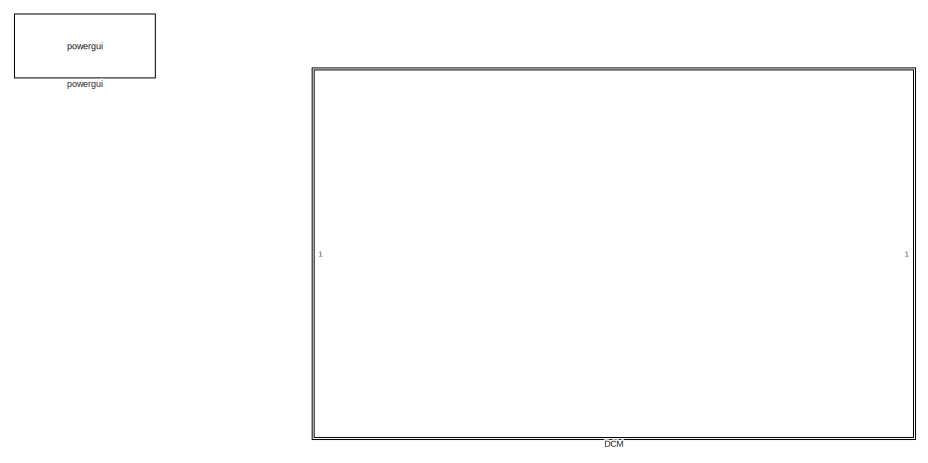
[diagram: root canvas - part 1/2, left side, full height]
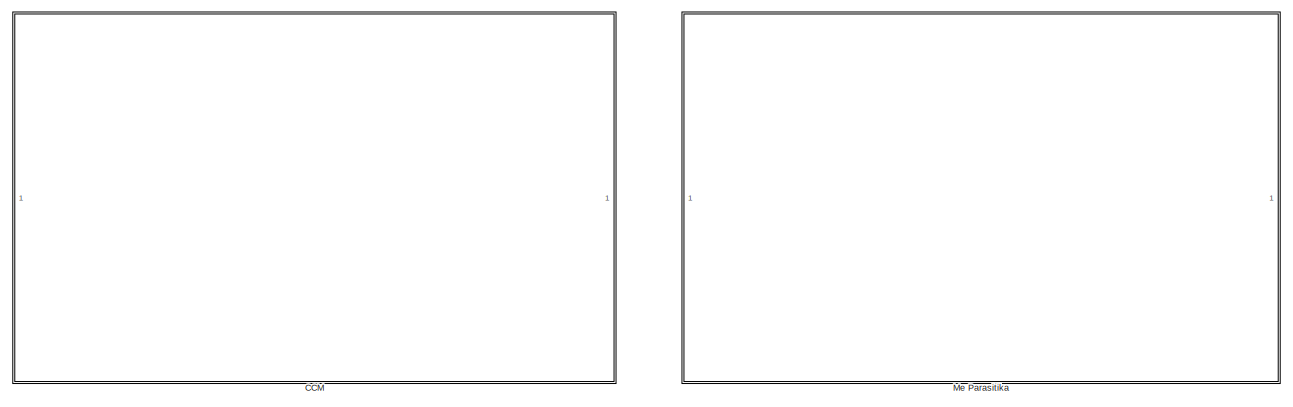
[diagram: root canvas - part 2/2, right side, full height]
MODEL slx_9b5503438261
KIND model
CONFIG AbsTol = auto
CONFIG EnableMultiTasking = off
CONFIG FixedStep = auto
CONFIG MaxStep = 1e-7
CONFIG MinStep = 1e-8
CONFIG RelTol = 1e-6
CONFIG SampleTimeConstraint = Unconstrained
CONFIG SolverName = ode23tb
CONFIG StartTime = 0.0
CONFIG StopTime = 0.05
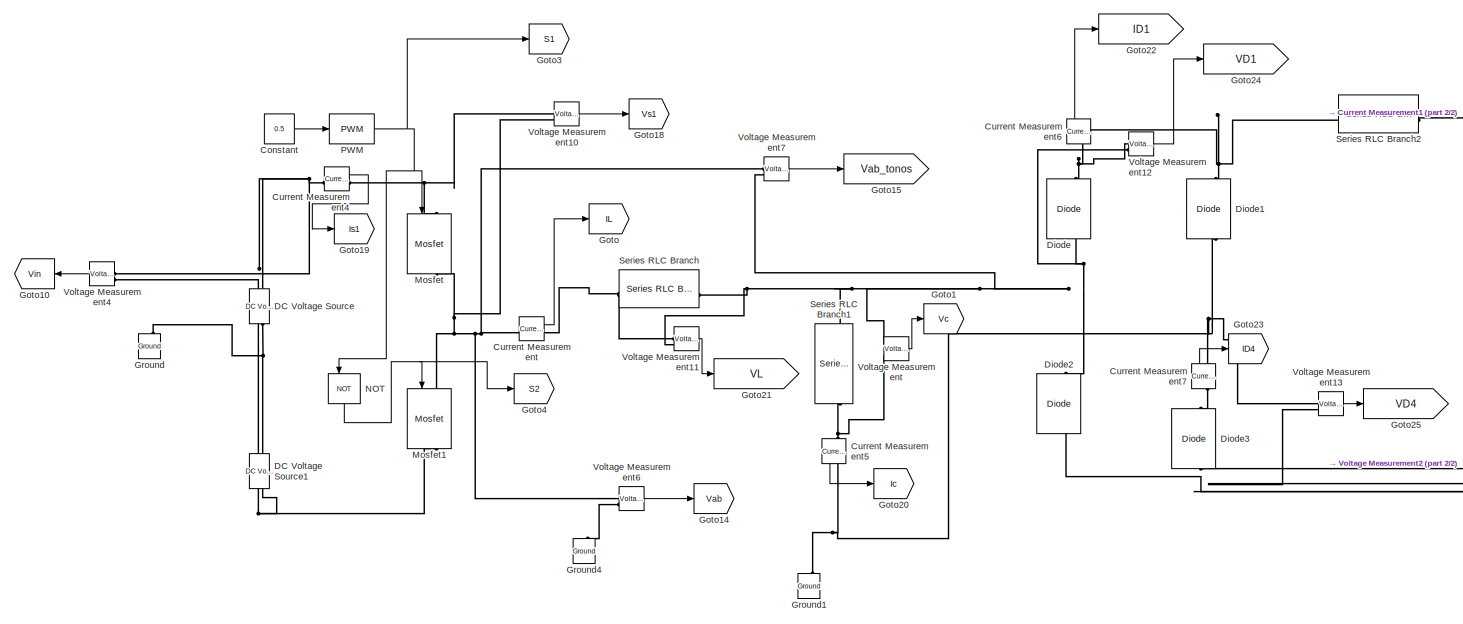
[diagram: CCM - part 1/2, left side, full height]
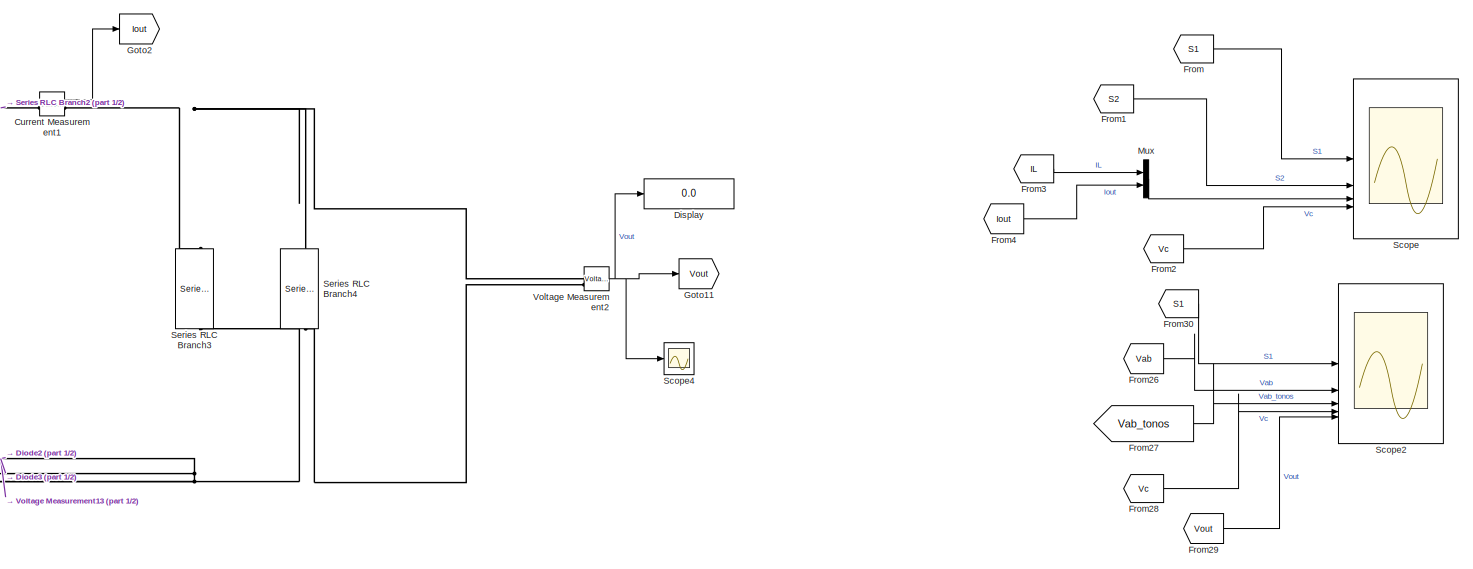
[diagram: CCM - part 2/2, right side, full height]
BLOCK [SubSystem] CCM
  OpenFcn = open_system(gcb, 'force')
BLOCK [Constant] CCM/Constant
  Value = 0.5
BLOCK [Reference] CCM/Current Measurement  REF=spsCurrentMeasurementLib/Current Measurement
  LibrarySourceBlock = sps_lib/Sensors and Measurements/Current Measurement
  SourceBlock = spsCurrentMeasurementLib/Current Measurement
  SourceType = Current Measurement
  UserDataPersistent = on
BLOCK [Reference] CCM/Current Measurement1  REF=spsCurrentMeasurementLib/Current Measurement
  LibrarySourceBlock = sps_lib/Sensors and Measurements/Current Measurement
  SourceBlock = spsCurrentMeasurementLib/Current Measurement
  SourceType = Current Measurement
  UserDataPersistent = on
BLOCK [Reference] CCM/Current Measurement4  REF=spsCurrentMeasurementLib/Current Measurement
  LibrarySourceBlock = sps_lib/Sensors and Measurements/Current Measurement
  SourceBlock = spsCurrentMeasurementLib/Current Measurement
  SourceType = Current Measurement
  UserDataPersistent = on
BLOCK [Reference] CCM/Current Measurement5  REF=spsCurrentMeasurementLib/Current Measurement
  LibrarySourceBlock = sps_lib/Sensors and Measurements/Current Measurement
  NameLocation = left
  SourceBlock = spsCurrentMeasurementLib/Current Measurement
  SourceType = Current Measurement
  UserDataPersistent = on
BLOCK [Reference] CCM/Current Measurement6  REF=spsCurrentMeasurementLib/Current Measurement
  LibrarySourceBlock = sps_lib/Sensors and Measurements/Current Measurement
  NameLocation = right
  SourceBlock = spsCurrentMeasurementLib/Current Measurement
  SourceType = Current Measurement
  UserDataPersistent = on
BLOCK [Reference] CCM/Current Measurement7  REF=spsCurrentMeasurementLib/Current Measurement
  LibrarySourceBlock = sps_lib/Sensors and Measurements/Current Measurement
  NameLocation = right
  SourceBlock = spsCurrentMeasurementLib/Current Measurement
  SourceType = Current Measurement
  UserDataPersistent = on
BLOCK [Reference] CCM/DC Voltage Source  REF=spsDCVoltageSourceLib/DC Voltage Source
  LibrarySourceBlock = sps_lib/Sources/DC Voltage Source
  SourceBlock = spsDCVoltageSourceLib/DC Voltage Source
  SourceType = DC Voltage Source
BLOCK [Reference] CCM/DC Voltage Source1  REF=spsDCVoltageSourceLib/DC Voltage Source
  LibrarySourceBlock = sps_lib/Sources/DC Voltage Source
  SourceBlock = spsDCVoltageSourceLib/DC Voltage Source
  SourceType = DC Voltage Source
BLOCK [Reference] CCM/Diode  REF=spsDiodeLib/Diode
  LibrarySourceBlock = sps_lib/Power Electronics/Diode
  NameLocation = right
  SourceBlock = spsDiodeLib/Diode
  SourceType = Diode
BLOCK [Reference] CCM/Diode1  REF=spsDiodeLib/Diode
  LibrarySourceBlock = sps_lib/Power Electronics/Diode
  NameLocation = right
  SourceBlock = spsDiodeLib/Diode
  SourceType = Diode
BLOCK [Reference] CCM/Diode2  REF=spsDiodeLib/Diode
  LibrarySourceBlock = sps_lib/Power Electronics/Diode
  NameLocation = right
  SourceBlock = spsDiodeLib/Diode
  SourceType = Diode
BLOCK [Reference] CCM/Diode3  REF=spsDiodeLib/Diode
  LibrarySourceBlock = sps_lib/Power Electronics/Diode
  NameLocation = right
  SourceBlock = spsDiodeLib/Diode
  SourceType = Diode
BLOCK [Display] CCM/Display
  Decimation = 1
BLOCK [From] CCM/From
  GotoTag = S1
BLOCK [From] CCM/From1
  GotoTag = S2
BLOCK [From] CCM/From2
  GotoTag = Vc
BLOCK [From] CCM/From26
  GotoTag = Vab
BLOCK [From] CCM/From27
  GotoTag = Vab_tonos
BLOCK [From] CCM/From28
  GotoTag = Vc
BLOCK [From] CCM/From29
  GotoTag = Vout
BLOCK [From] CCM/From3
  GotoTag = IL
BLOCK [From] CCM/From30
  GotoTag = S1
BLOCK [From] CCM/From4
  GotoTag = Iout
BLOCK [Goto] CCM/Goto
  GotoTag = IL
BLOCK [Goto] CCM/Goto1
  GotoTag = Vc
BLOCK [Goto] CCM/Goto10
  GotoTag = Vin
  NameLocation = top
BLOCK [Goto] CCM/Goto11
  GotoTag = Vout
BLOCK [Goto] CCM/Goto14
  GotoTag = Vab
BLOCK [Goto] CCM/Goto15
  GotoTag = Vab_tonos
BLOCK [Goto] CCM/Goto18
  GotoTag = Vs1
BLOCK [Goto] CCM/Goto19
  GotoTag = Is1
BLOCK [Goto] CCM/Goto2
  GotoTag = Iout
BLOCK [Goto] CCM/Goto20
  GotoTag = Ic
BLOCK [Goto] CCM/Goto21
  GotoTag = VL
BLOCK [Goto] CCM/Goto22
  GotoTag = ID1
BLOCK [Goto] CCM/Goto23
  GotoTag = ID4
BLOCK [Goto] CCM/Goto24
  GotoTag = VD1
BLOCK [Goto] CCM/Goto25
  GotoTag = VD4
BLOCK [Goto] CCM/Goto3
  GotoTag = S1
BLOCK [Goto] CCM/Goto4
  GotoTag = S2
BLOCK [Reference] CCM/Ground  REF=spsGroundLib/Ground
  LibrarySourceBlock = sps_lib/Utilities/Ground
  NameLocation = right
  SourceBlock = spsGroundLib/Ground
  SourceType = Ground
BLOCK [Reference] CCM/Ground1  REF=spsGroundLib/Ground
  LibrarySourceBlock = sps_lib/Utilities/Ground
  NameLocation = right
  SourceBlock = spsGroundLib/Ground
  SourceType = Ground
BLOCK [Reference] CCM/Ground4  REF=spsGroundLib/Ground
  LibrarySourceBlock = sps_lib/Utilities/Ground
  NameLocation = right
  SourceBlock = spsGroundLib/Ground
  SourceType = Ground
BLOCK [Reference] CCM/Mosfet  REF=spsMosfetLib/Mosfet
  LibrarySourceBlock = sps_lib/Power Electronics/Mosfet
  NameLocation = left
  SourceBlock = spsMosfetLib/Mosfet
  SourceType = Mosfet
BLOCK [Reference] CCM/Mosfet1  REF=spsMosfetLib/Mosfet
  LibrarySourceBlock = sps_lib/Power Electronics/Mosfet
  NameLocation = left
  SourceBlock = spsMosfetLib/Mosfet
  SourceType = Mosfet
BLOCK [Mux] CCM/Mux
  DisplayOption = bar
  Inputs = 2
BLOCK [Logic] CCM/NOT
  AllPortsSameDT = off
  IconShape = distinctive
  NameLocation = left
  Operator = NOT
  OutDataTypeStr = boolean
BLOCK [Reference] CCM/PWM  REF=simulink/Discontinuities/PWM
  DisableCoverage = on
  SourceBlock = simulink/Discontinuities/PWM
  SourceType = PWM
BLOCK [Scope] CCM/Scope
  Floating = off
  NumInputPorts = 4
  ScopeSpecificationString = Simulink.scopes.TimeScopeBlockCfg('CurrentConfiguration', extmgr.ConfigurationSet(extmgr.Configuration('Core','General UI',true,'FigureColor',[1 1 1]),extmgr.Configuration('Core','Source UI',true),extmgr.Configuration('Sources','WiredSimulink',true,'DataLoggingVariableName','ScopeData1'),extmgr.Configuration('Visuals','Time Domain',true,'SerializedDisplays',{struct('MinYLimReal','-0.125','MaxYLimR...<+4024ch>
BLOCK [Scope] CCM/Scope2
  Floating = off
  NumInputPorts = 5
  ScopeSpecificationString = Simulink.scopes.TimeScopeBlockCfg('CurrentConfiguration', extmgr.ConfigurationSet(extmgr.Configuration('Core','General UI',true,'FigureColor',[1 1 1]),extmgr.Configuration('Core','Source UI',true),extmgr.Configuration('Sources','WiredSimulink',true,'DataLoggingVariableName','ScopeData4'),extmgr.Configuration('Visuals','Time Domain',true,'SerializedDisplays',{struct('MinYLimReal','-0.125','MaxYLimR...<+4066ch>
BLOCK [Scope] CCM/Scope4
  Floating = off
  NumInputPorts = 1
  ScopeSpecificationString = Simulink.scopes.TimeScopeBlockCfg('CurrentConfiguration', extmgr.ConfigurationSet(extmgr.Configuration('Core','General UI',true,'FigureColor',[1 1 1]),extmgr.Configuration('Core','Source UI',true),extmgr.Configuration('Sources','WiredSimulink',true,'DataLoggingVariableName','ScopeData6'),extmgr.Configuration('Visuals','Time Domain',true,'SerializedDisplays',{struct('MinYLimReal','-14.93941','MaxYL...<+1493ch>
BLOCK [Reference] CCM/Series RLC Branch  REF=spsSeriesRLCBranchLib/Series RLC Branch
  LibrarySourceBlock = sps_lib/Passives/Series RLC Branch
  SourceBlock = spsSeriesRLCBranchLib/Series RLC Branch
  SourceType = Series RLC Branch
BLOCK [Reference] CCM/Series RLC Branch1  REF=spsSeriesRLCBranchLib/Series RLC Branch
  LibrarySourceBlock = sps_lib/Passives/Series RLC Branch
  NameLocation = left
  SourceBlock = spsSeriesRLCBranchLib/Series RLC Branch
  SourceType = Series RLC Branch
BLOCK [Reference] CCM/Series RLC Branch2  REF=spsSeriesRLCBranchLib/Series RLC Branch
  LibrarySourceBlock = sps_lib/Passives/Series RLC Branch
  SourceBlock = spsSeriesRLCBranchLib/Series RLC Branch
  SourceType = Series RLC Branch
BLOCK [Reference] CCM/Series RLC Branch3  REF=spsSeriesRLCBranchLib/Series RLC Branch
  LibrarySourceBlock = sps_lib/Passives/Series RLC Branch
  NameLocation = left
  SourceBlock = spsSeriesRLCBranchLib/Series RLC Branch
  SourceType = Series RLC Branch
BLOCK [Reference] CCM/Series RLC Branch4  REF=spsSeriesRLCBranchLib/Series RLC Branch
  LibrarySourceBlock = sps_lib/Passives/Series RLC Branch
  NameLocation = left
  SourceBlock = spsSeriesRLCBranchLib/Series RLC Branch
  SourceType = Series RLC Branch
BLOCK [Reference] CCM/Voltage Measurement  REF=spsVoltageMeasurementLib/Voltage Measurement
  LibrarySourceBlock = sps_lib/Sensors and Measurements/Voltage Measurement
  SourceBlock = spsVoltageMeasurementLib/Voltage Measurement
  SourceType = Voltage Measurement
  UserDataPersistent = on
BLOCK [Reference] CCM/Voltage Measurement10  REF=spsVoltageMeasurementLib/Voltage Measurement
  LibrarySourceBlock = sps_lib/Sensors and Measurements/Voltage Measurement
  SourceBlock = spsVoltageMeasurementLib/Voltage Measurement
  SourceType = Voltage Measurement
  UserDataPersistent = on
BLOCK [Reference] CCM/Voltage Measurement11  REF=spsVoltageMeasurementLib/Voltage Measurement
  LibrarySourceBlock = sps_lib/Sensors and Measurements/Voltage Measurement
  SourceBlock = spsVoltageMeasurementLib/Voltage Measurement
  SourceType = Voltage Measurement
  UserDataPersistent = on
BLOCK [Reference] CCM/Voltage Measurement12  REF=spsVoltageMeasurementLib/Voltage Measurement
  LibrarySourceBlock = sps_lib/Sensors and Measurements/Voltage Measurement
  SourceBlock = spsVoltageMeasurementLib/Voltage Measurement
  SourceType = Voltage Measurement
  UserDataPersistent = on
BLOCK [Reference] CCM/Voltage Measurement13  REF=spsVoltageMeasurementLib/Voltage Measurement
  LibrarySourceBlock = sps_lib/Sensors and Measurements/Voltage Measurement
  SourceBlock = spsVoltageMeasurementLib/Voltage Measurement
  SourceType = Voltage Measurement
  UserDataPersistent = on
BLOCK [Reference] CCM/Voltage Measurement2  REF=spsVoltageMeasurementLib/Voltage Measurement
  LibrarySourceBlock = sps_lib/Sensors and Measurements/Voltage Measurement
  SourceBlock = spsVoltageMeasurementLib/Voltage Measurement
  SourceType = Voltage Measurement
  UserDataPersistent = on
BLOCK [Reference] CCM/Voltage Measurement4  REF=spsVoltageMeasurementLib/Voltage Measurement
  LibrarySourceBlock = sps_lib/Sensors and Measurements/Voltage Measurement
  SourceBlock = spsVoltageMeasurementLib/Voltage Measurement
  SourceType = Voltage Measurement
  UserDataPersistent = on
BLOCK [Reference] CCM/Voltage Measurement6  REF=spsVoltageMeasurementLib/Voltage Measurement
  LibrarySourceBlock = sps_lib/Sensors and Measurements/Voltage Measurement
  SourceBlock = spsVoltageMeasurementLib/Voltage Measurement
  SourceType = Voltage Measurement
  UserDataPersistent = on
BLOCK [Reference] CCM/Voltage Measurement7  REF=spsVoltageMeasurementLib/Voltage Measurement
  LibrarySourceBlock = sps_lib/Sensors and Measurements/Voltage Measurement
  SourceBlock = spsVoltageMeasurementLib/Voltage Measurement
  SourceType = Voltage Measurement
  UserDataPersistent = on
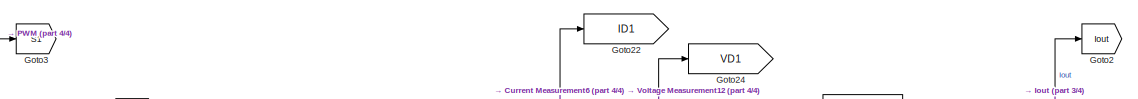
[diagram: DCM - part 1/4, top center region]
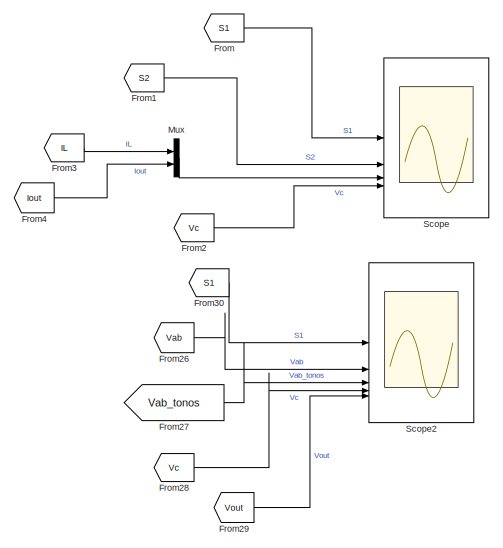
[diagram: DCM - part 2/4, right side, full height]
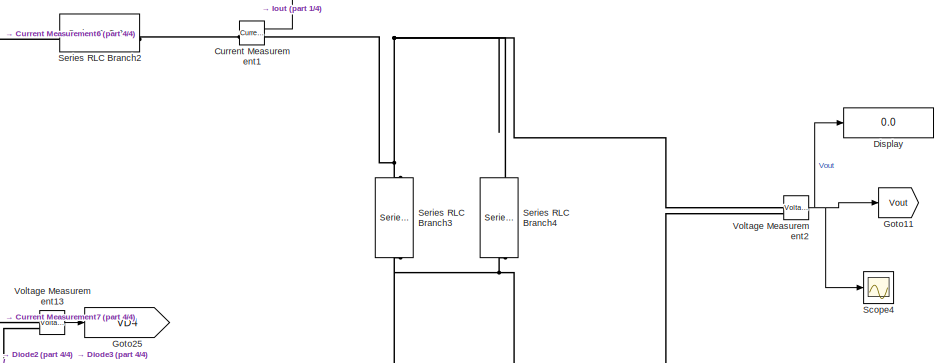
[diagram: DCM - part 3/4, central region]
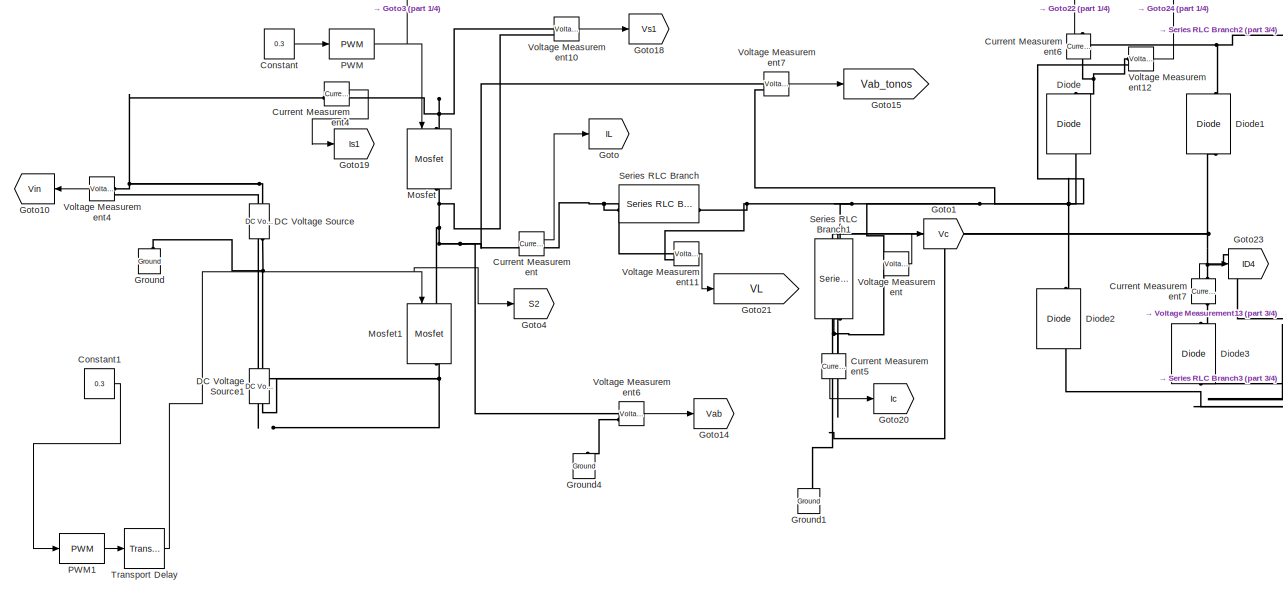
[diagram: DCM - part 4/4, left side, full height]
BLOCK [SubSystem] DCM
  OpenFcn = open_system(gcb, 'force')
BLOCK [Constant] DCM/Constant
  Value = 0.3
BLOCK [Constant] DCM/Constant1
  Value = 0.3
BLOCK [Reference] DCM/Current Measurement  REF=spsCurrentMeasurementLib/Current Measurement
  LibrarySourceBlock = sps_lib/Sensors and Measurements/Current Measurement
  SourceBlock = spsCurrentMeasurementLib/Current Measurement
  SourceType = Current Measurement
  UserDataPersistent = on
BLOCK [Reference] DCM/Current Measurement1  REF=spsCurrentMeasurementLib/Current Measurement
  LibrarySourceBlock = sps_lib/Sensors and Measurements/Current Measurement
  SourceBlock = spsCurrentMeasurementLib/Current Measurement
  SourceType = Current Measurement
  UserDataPersistent = on
BLOCK [Reference] DCM/Current Measurement4  REF=spsCurrentMeasurementLib/Current Measurement
  LibrarySourceBlock = sps_lib/Sensors and Measurements/Current Measurement
  SourceBlock = spsCurrentMeasurementLib/Current Measurement
  SourceType = Current Measurement
  UserDataPersistent = on
BLOCK [Reference] DCM/Current Measurement5  REF=spsCurrentMeasurementLib/Current Measurement
  LibrarySourceBlock = sps_lib/Sensors and Measurements/Current Measurement
  NameLocation = left
  SourceBlock = spsCurrentMeasurementLib/Current Measurement
  SourceType = Current Measurement
  UserDataPersistent = on
BLOCK [Reference] DCM/Current Measurement6  REF=spsCurrentMeasurementLib/Current Measurement
  LibrarySourceBlock = sps_lib/Sensors and Measurements/Current Measurement
  NameLocation = right
  SourceBlock = spsCurrentMeasurementLib/Current Measurement
  SourceType = Current Measurement
  UserDataPersistent = on
BLOCK [Reference] DCM/Current Measurement7  REF=spsCurrentMeasurementLib/Current Measurement
  LibrarySourceBlock = sps_lib/Sensors and Measurements/Current Measurement
  NameLocation = right
  SourceBlock = spsCurrentMeasurementLib/Current Measurement
  SourceType = Current Measurement
  UserDataPersistent = on
BLOCK [Reference] DCM/DC Voltage Source  REF=spsDCVoltageSourceLib/DC Voltage Source
  LibrarySourceBlock = sps_lib/Sources/DC Voltage Source
  SourceBlock = spsDCVoltageSourceLib/DC Voltage Source
  SourceType = DC Voltage Source
BLOCK [Reference] DCM/DC Voltage Source1  REF=spsDCVoltageSourceLib/DC Voltage Source
  LibrarySourceBlock = sps_lib/Sources/DC Voltage Source
  SourceBlock = spsDCVoltageSourceLib/DC Voltage Source
  SourceType = DC Voltage Source
BLOCK [Reference] DCM/Diode  REF=spsDiodeLib/Diode
  LibrarySourceBlock = sps_lib/Power Electronics/Diode
  NameLocation = right
  SourceBlock = spsDiodeLib/Diode
  SourceType = Diode
BLOCK [Reference] DCM/Diode1  REF=spsDiodeLib/Diode
  LibrarySourceBlock = sps_lib/Power Electronics/Diode
  NameLocation = right
  SourceBlock = spsDiodeLib/Diode
  SourceType = Diode
BLOCK [Reference] DCM/Diode2  REF=spsDiodeLib/Diode
  LibrarySourceBlock = sps_lib/Power Electronics/Diode
  NameLocation = right
  SourceBlock = spsDiodeLib/Diode
  SourceType = Diode
BLOCK [Reference] DCM/Diode3  REF=spsDiodeLib/Diode
  LibrarySourceBlock = sps_lib/Power Electronics/Diode
  NameLocation = right
  SourceBlock = spsDiodeLib/Diode
  SourceType = Diode
BLOCK [Display] DCM/Display
  Decimation = 1
BLOCK [From] DCM/From
  GotoTag = S1
BLOCK [From] DCM/From1
  GotoTag = S2
BLOCK [From] DCM/From2
  GotoTag = Vc
BLOCK [From] DCM/From26
  GotoTag = Vab
BLOCK [From] DCM/From27
  GotoTag = Vab_tonos
BLOCK [From] DCM/From28
  GotoTag = Vc
BLOCK [From] DCM/From29
  GotoTag = Vout
BLOCK [From] DCM/From3
  GotoTag = IL
BLOCK [From] DCM/From30
  GotoTag = S1
BLOCK [From] DCM/From4
  GotoTag = Iout
BLOCK [Goto] DCM/Goto
  GotoTag = IL
BLOCK [Goto] DCM/Goto1
  GotoTag = Vc
BLOCK [Goto] DCM/Goto10
  GotoTag = Vin
  NameLocation = top
BLOCK [Goto] DCM/Goto11
  GotoTag = Vout
BLOCK [Goto] DCM/Goto14
  GotoTag = Vab
BLOCK [Goto] DCM/Goto15
  GotoTag = Vab_tonos
BLOCK [Goto] DCM/Goto18
  GotoTag = Vs1
BLOCK [Goto] DCM/Goto19
  GotoTag = Is1
BLOCK [Goto] DCM/Goto2
  GotoTag = Iout
BLOCK [Goto] DCM/Goto20
  GotoTag = Ic
BLOCK [Goto] DCM/Goto21
  GotoTag = VL
BLOCK [Goto] DCM/Goto22
  GotoTag = ID1
BLOCK [Goto] DCM/Goto23
  GotoTag = ID4
BLOCK [Goto] DCM/Goto24
  GotoTag = VD1
BLOCK [Goto] DCM/Goto25
  GotoTag = VD4
BLOCK [Goto] DCM/Goto3
  GotoTag = S1
BLOCK [Goto] DCM/Goto4
  GotoTag = S2
BLOCK [Reference] DCM/Ground  REF=spsGroundLib/Ground
  LibrarySourceBlock = sps_lib/Utilities/Ground
  NameLocation = right
  SourceBlock = spsGroundLib/Ground
  SourceType = Ground
BLOCK [Reference] DCM/Ground1  REF=spsGroundLib/Ground
  LibrarySourceBlock = sps_lib/Utilities/Ground
  NameLocation = right
  SourceBlock = spsGroundLib/Ground
  SourceType = Ground
BLOCK [Reference] DCM/Ground4  REF=spsGroundLib/Ground
  LibrarySourceBlock = sps_lib/Utilities/Ground
  NameLocation = right
  SourceBlock = spsGroundLib/Ground
  SourceType = Ground
BLOCK [Reference] DCM/Mosfet  REF=spsMosfetLib/Mosfet
  LibrarySourceBlock = sps_lib/Power Electronics/Mosfet
  NameLocation = left
  SourceBlock = spsMosfetLib/Mosfet
  SourceType = Mosfet
BLOCK [Reference] DCM/Mosfet1  REF=spsMosfetLib/Mosfet
  LibrarySourceBlock = sps_lib/Power Electronics/Mosfet
  NameLocation = left
  SourceBlock = spsMosfetLib/Mosfet
  SourceType = Mosfet
BLOCK [Mux] DCM/Mux
  DisplayOption = bar
  Inputs = 2
BLOCK [Reference] DCM/PWM  REF=simulink/Discontinuities/PWM
  DisableCoverage = on
  SourceBlock = simulink/Discontinuities/PWM
  SourceType = PWM
BLOCK [Reference] DCM/PWM1  REF=simulink/Discontinuities/PWM
  DisableCoverage = on
  SourceBlock = simulink/Discontinuities/PWM
  SourceType = PWM
BLOCK [Scope] DCM/Scope
  Floating = off
  NumInputPorts = 4
  ScopeSpecificationString = Simulink.scopes.TimeScopeBlockCfg('CurrentConfiguration', extmgr.ConfigurationSet(extmgr.Configuration('Core','General UI',true,'FigureColor',[1 1 1]),extmgr.Configuration('Core','Source UI',true),extmgr.Configuration('Sources','WiredSimulink',true,'DataLoggingVariableName','ScopeData1'),extmgr.Configuration('Visuals','Time Domain',true,'SerializedDisplays',{struct('MinYLimReal','-0.125','MaxYLimR...<+4047ch>
BLOCK [Scope] DCM/Scope2
  Floating = off
  NumInputPorts = 5
  ScopeSpecificationString = Simulink.scopes.TimeScopeBlockCfg('CurrentConfiguration', extmgr.ConfigurationSet(extmgr.Configuration('Core','General UI',true,'FigureColor',[1 1 1]),extmgr.Configuration('Core','Source UI',true),extmgr.Configuration('Sources','WiredSimulink',true,'DataLoggingVariableName','ScopeData4'),extmgr.Configuration('Visuals','Time Domain',true,'SerializedDisplays',{struct('MinYLimReal','-0.125','MaxYLimR...<+4067ch>
BLOCK [Scope] DCM/Scope4
  Floating = off
  NumInputPorts = 1
  ScopeSpecificationString = Simulink.scopes.TimeScopeBlockCfg('CurrentConfiguration', extmgr.ConfigurationSet(extmgr.Configuration('Core','General UI',true,'FigureColor',[1 1 1]),extmgr.Configuration('Core','Source UI',true),extmgr.Configuration('Sources','WiredSimulink',true,'DataLoggingVariableName','ScopeData6'),extmgr.Configuration('Visuals','Time Domain',true,'SerializedDisplays',{struct('MinYLimReal','-7.55552','MaxYLi...<+1487ch>
BLOCK [Reference] DCM/Series RLC Branch  REF=spsSeriesRLCBranchLib/Series RLC Branch
  LibrarySourceBlock = sps_lib/Passives/Series RLC Branch
  SourceBlock = spsSeriesRLCBranchLib/Series RLC Branch
  SourceType = Series RLC Branch
BLOCK [Reference] DCM/Series RLC Branch1  REF=spsSeriesRLCBranchLib/Series RLC Branch
  LibrarySourceBlock = sps_lib/Passives/Series RLC Branch
  NameLocation = left
  SourceBlock = spsSeriesRLCBranchLib/Series RLC Branch
  SourceType = Series RLC Branch
BLOCK [Reference] DCM/Series RLC Branch2  REF=spsSeriesRLCBranchLib/Series RLC Branch
  LibrarySourceBlock = sps_lib/Passives/Series RLC Branch
  SourceBlock = spsSeriesRLCBranchLib/Series RLC Branch
  SourceType = Series RLC Branch
BLOCK [Reference] DCM/Series RLC Branch3  REF=spsSeriesRLCBranchLib/Series RLC Branch
  LibrarySourceBlock = sps_lib/Passives/Series RLC Branch
  NameLocation = left
  SourceBlock = spsSeriesRLCBranchLib/Series RLC Branch
  SourceType = Series RLC Branch
BLOCK [Reference] DCM/Series RLC Branch4  REF=spsSeriesRLCBranchLib/Series RLC Branch
  LibrarySourceBlock = sps_lib/Passives/Series RLC Branch
  NameLocation = left
  SourceBlock = spsSeriesRLCBranchLib/Series RLC Branch
  SourceType = Series RLC Branch
BLOCK [TransportDelay] DCM/Transport Delay
  DelayTime = 0.5/5000
BLOCK [Reference] DCM/Voltage Measurement  REF=spsVoltageMeasurementLib/Voltage Measurement
  LibrarySourceBlock = sps_lib/Sensors and Measurements/Voltage Measurement
  SourceBlock = spsVoltageMeasurementLib/Voltage Measurement
  SourceType = Voltage Measurement
  UserDataPersistent = on
BLOCK [Reference] DCM/Voltage Measurement10  REF=spsVoltageMeasurementLib/Voltage Measurement
  LibrarySourceBlock = sps_lib/Sensors and Measurements/Voltage Measurement
  SourceBlock = spsVoltageMeasurementLib/Voltage Measurement
  SourceType = Voltage Measurement
  UserDataPersistent = on
BLOCK [Reference] DCM/Voltage Measurement11  REF=spsVoltageMeasurementLib/Voltage Measurement
  LibrarySourceBlock = sps_lib/Sensors and Measurements/Voltage Measurement
  SourceBlock = spsVoltageMeasurementLib/Voltage Measurement
  SourceType = Voltage Measurement
  UserDataPersistent = on
BLOCK [Reference] DCM/Voltage Measurement12  REF=spsVoltageMeasurementLib/Voltage Measurement
  LibrarySourceBlock = sps_lib/Sensors and Measurements/Voltage Measurement
  SourceBlock = spsVoltageMeasurementLib/Voltage Measurement
  SourceType = Voltage Measurement
  UserDataPersistent = on
BLOCK [Reference] DCM/Voltage Measurement13  REF=spsVoltageMeasurementLib/Voltage Measurement
  LibrarySourceBlock = sps_lib/Sensors and Measurements/Voltage Measurement
  SourceBlock = spsVoltageMeasurementLib/Voltage Measurement
  SourceType = Voltage Measurement
  UserDataPersistent = on
BLOCK [Reference] DCM/Voltage Measurement2  REF=spsVoltageMeasurementLib/Voltage Measurement
  LibrarySourceBlock = sps_lib/Sensors and Measurements/Voltage Measurement
  SourceBlock = spsVoltageMeasurementLib/Voltage Measurement
  SourceType = Voltage Measurement
  UserDataPersistent = on
BLOCK [Reference] DCM/Voltage Measurement4  REF=spsVoltageMeasurementLib/Voltage Measurement
  LibrarySourceBlock = sps_lib/Sensors and Measurements/Voltage Measurement
  SourceBlock = spsVoltageMeasurementLib/Voltage Measurement
  SourceType = Voltage Measurement
  UserDataPersistent = on
BLOCK [Reference] DCM/Voltage Measurement6  REF=spsVoltageMeasurementLib/Voltage Measurement
  LibrarySourceBlock = sps_lib/Sensors and Measurements/Voltage Measurement
  SourceBlock = spsVoltageMeasurementLib/Voltage Measurement
  SourceType = Voltage Measurement
  UserDataPersistent = on
BLOCK [Reference] DCM/Voltage Measurement7  REF=spsVoltageMeasurementLib/Voltage Measurement
  LibrarySourceBlock = sps_lib/Sensors and Measurements/Voltage Measurement
  SourceBlock = spsVoltageMeasurementLib/Voltage Measurement
  SourceType = Voltage Measurement
  UserDataPersistent = on
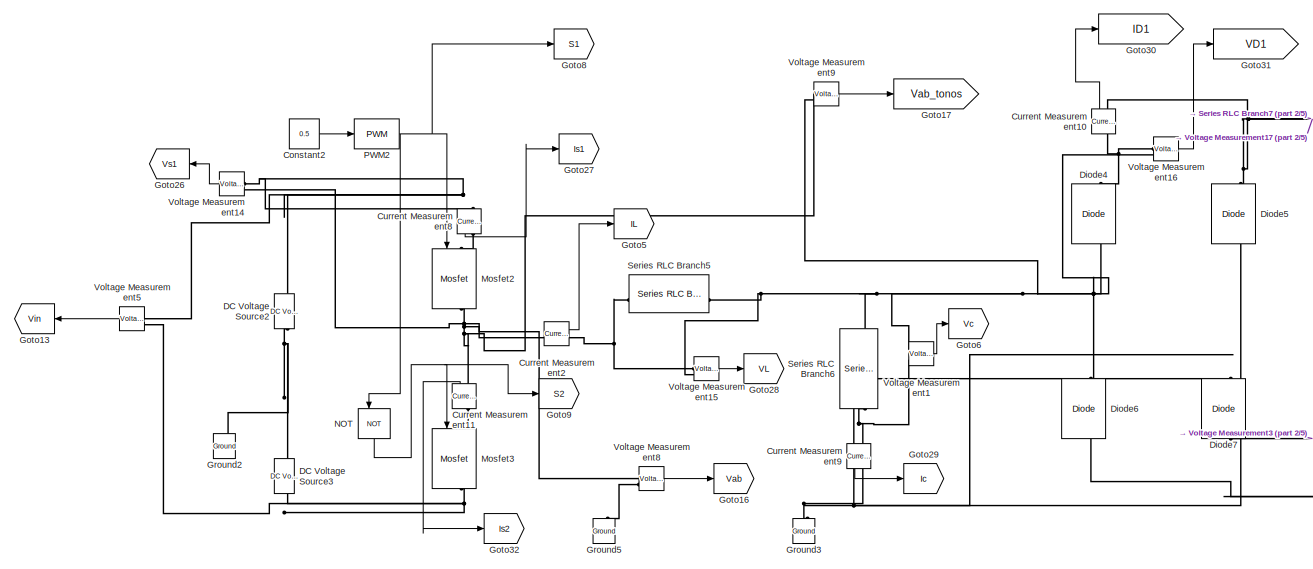
[diagram: Me Parasitika - part 1/5, top left region]
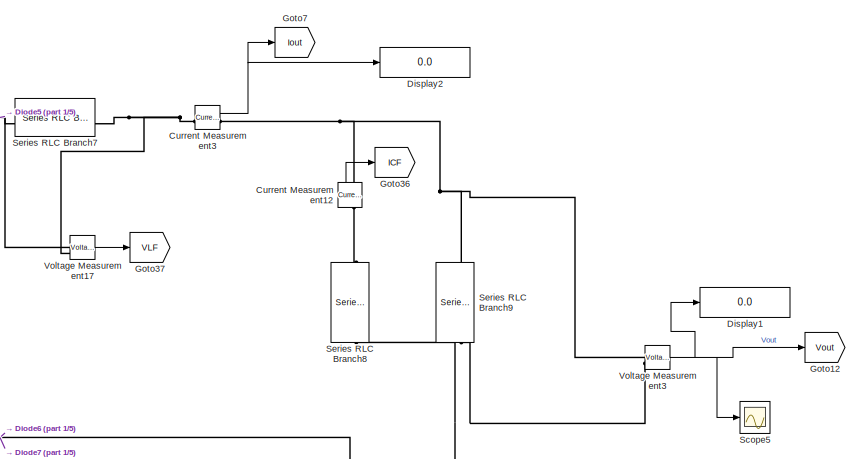
[diagram: Me Parasitika - part 2/5, top center region]
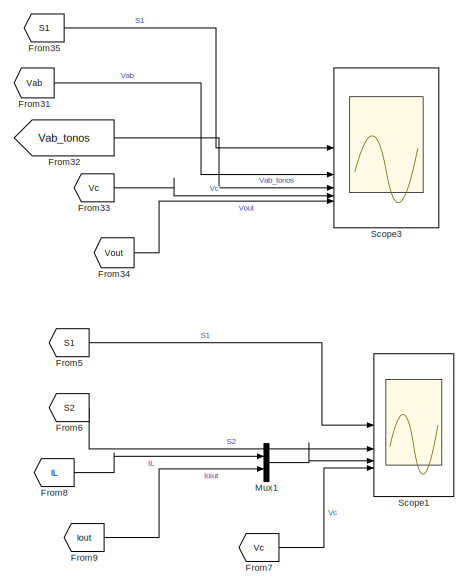
[diagram: Me Parasitika - part 3/5, top right region]
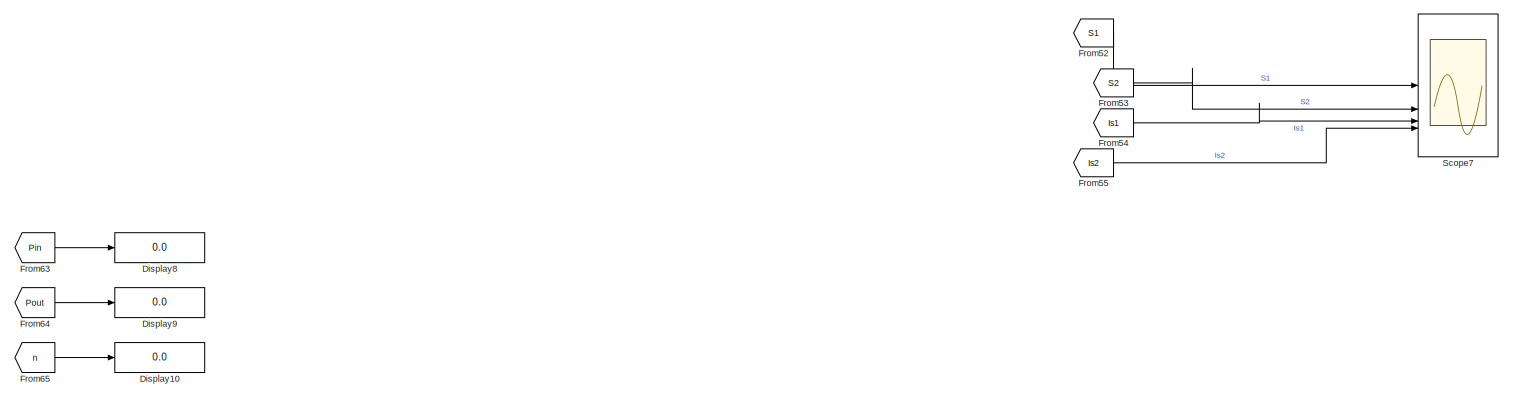
[diagram: Me Parasitika - part 4/5, middle right region]
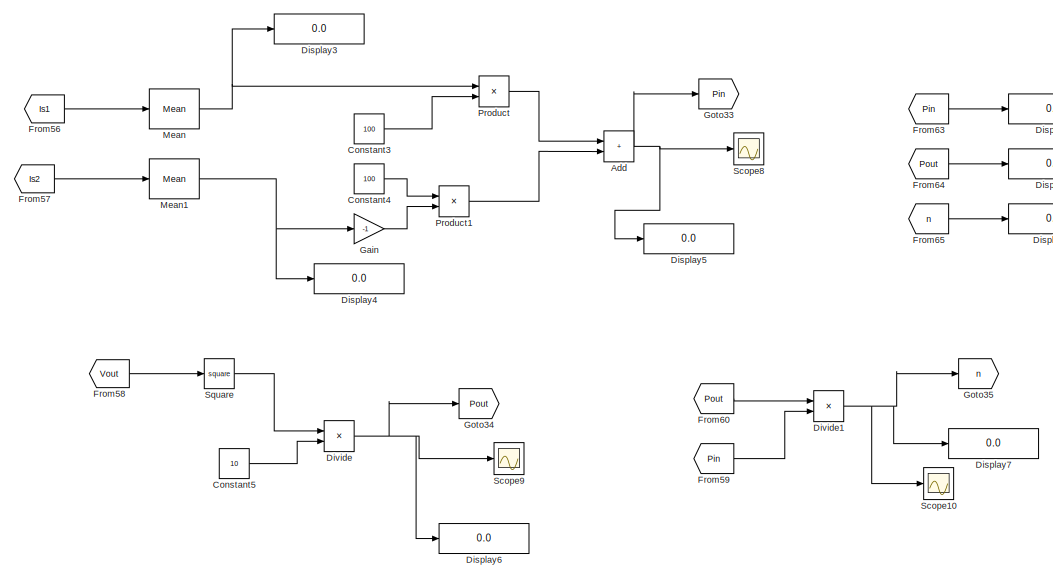
[diagram: Me Parasitika - part 5/5, bottom center region]
BLOCK [SubSystem] Me Parasitika
  OpenFcn = open_system(gcb, 'force')
BLOCK [Sum] Me Parasitika/Add
  IconShape = rectangular
BLOCK [Constant] Me Parasitika/Constant2
  Value = 0.5
BLOCK [Constant] Me Parasitika/Constant3
  Value = 100
BLOCK [Constant] Me Parasitika/Constant4
  Value = 100
BLOCK [Constant] Me Parasitika/Constant5
  Value = 10
BLOCK [Reference] Me Parasitika/Current Measurement10  REF=spsCurrentMeasurementLib/Current Measurement
  LibrarySourceBlock = sps_lib/Sensors and Measurements/Current Measurement
  NameLocation = right
  SourceBlock = spsCurrentMeasurementLib/Current Measurement
  SourceType = Current Measurement
  UserDataPersistent = on
BLOCK [Reference] Me Parasitika/Current Measurement11  REF=spsCurrentMeasurementLib/Current Measurement
  LibrarySourceBlock = sps_lib/Sensors and Measurements/Current Measurement
  NameLocation = right
  SourceBlock = spsCurrentMeasurementLib/Current Measurement
  SourceType = Current Measurement
  UserDataPersistent = on
BLOCK [Reference] Me Parasitika/Current Measurement12  REF=spsCurrentMeasurementLib/Current Measurement
  LibrarySourceBlock = sps_lib/Sensors and Measurements/Current Measurement
  NameLocation = right
  SourceBlock = spsCurrentMeasurementLib/Current Measurement
  SourceType = Current Measurement
  UserDataPersistent = on
BLOCK [Reference] Me Parasitika/Current Measurement2  REF=spsCurrentMeasurementLib/Current Measurement
  LibrarySourceBlock = sps_lib/Sensors and Measurements/Current Measurement
  SourceBlock = spsCurrentMeasurementLib/Current Measurement
  SourceType = Current Measurement
  UserDataPersistent = on
BLOCK [Reference] Me Parasitika/Current Measurement3  REF=spsCurrentMeasurementLib/Current Measurement
  LibrarySourceBlock = sps_lib/Sensors and Measurements/Current Measurement
  SourceBlock = spsCurrentMeasurementLib/Current Measurement
  SourceType = Current Measurement
  UserDataPersistent = on
BLOCK [Reference] Me Parasitika/Current Measurement8  REF=spsCurrentMeasurementLib/Current Measurement
  LibrarySourceBlock = sps_lib/Sensors and Measurements/Current Measurement
  NameLocation = left
  SourceBlock = spsCurrentMeasurementLib/Current Measurement
  SourceType = Current Measurement
  UserDataPersistent = on
BLOCK [Reference] Me Parasitika/Current Measurement9  REF=spsCurrentMeasurementLib/Current Measurement
  LibrarySourceBlock = sps_lib/Sensors and Measurements/Current Measurement
  NameLocation = left
  SourceBlock = spsCurrentMeasurementLib/Current Measurement
  SourceType = Current Measurement
  UserDataPersistent = on
BLOCK [Reference] Me Parasitika/DC Voltage Source2  REF=spsDCVoltageSourceLib/DC Voltage Source
  LibrarySourceBlock = sps_lib/Sources/DC Voltage Source
  SourceBlock = spsDCVoltageSourceLib/DC Voltage Source
  SourceType = DC Voltage Source
BLOCK [Reference] Me Parasitika/DC Voltage Source3  REF=spsDCVoltageSourceLib/DC Voltage Source
  LibrarySourceBlock = sps_lib/Sources/DC Voltage Source
  SourceBlock = spsDCVoltageSourceLib/DC Voltage Source
  SourceType = DC Voltage Source
BLOCK [Reference] Me Parasitika/Diode4  REF=spsDiodeLib/Diode
  LibrarySourceBlock = sps_lib/Power Electronics/Diode
  NameLocation = right
  SourceBlock = spsDiodeLib/Diode
  SourceType = Diode
BLOCK [Reference] Me Parasitika/Diode5  REF=spsDiodeLib/Diode
  LibrarySourceBlock = sps_lib/Power Electronics/Diode
  NameLocation = right
  SourceBlock = spsDiodeLib/Diode
  SourceType = Diode
BLOCK [Reference] Me Parasitika/Diode6  REF=spsDiodeLib/Diode
  LibrarySourceBlock = sps_lib/Power Electronics/Diode
  NameLocation = right
  SourceBlock = spsDiodeLib/Diode
  SourceType = Diode
BLOCK [Reference] Me Parasitika/Diode7  REF=spsDiodeLib/Diode
  LibrarySourceBlock = sps_lib/Power Electronics/Diode
  NameLocation = right
  SourceBlock = spsDiodeLib/Diode
  SourceType = Diode
BLOCK [Display] Me Parasitika/Display1
  Decimation = 1
BLOCK [Display] Me Parasitika/Display10
  Decimation = 1
BLOCK [Display] Me Parasitika/Display2
  Decimation = 1
BLOCK [Display] Me Parasitika/Display3
  Decimation = 1
BLOCK [Display] Me Parasitika/Display4
  Decimation = 1
BLOCK [Display] Me Parasitika/Display5
  Decimation = 1
BLOCK [Display] Me Parasitika/Display6
  Decimation = 1
BLOCK [Display] Me Parasitika/Display7
  Decimation = 1
BLOCK [Display] Me Parasitika/Display8
  Decimation = 1
BLOCK [Display] Me Parasitika/Display9
  Decimation = 1
BLOCK [Product] Me Parasitika/Divide
  Inputs = */
BLOCK [Product] Me Parasitika/Divide1
  Inputs = */
BLOCK [From] Me Parasitika/From31
  GotoTag = Vab
BLOCK [From] Me Parasitika/From32
  GotoTag = Vab_tonos
BLOCK [From] Me Parasitika/From33
  GotoTag = Vc
BLOCK [From] Me Parasitika/From34
  GotoTag = Vout
BLOCK [From] Me Parasitika/From35
  GotoTag = S1
BLOCK [From] Me Parasitika/From5
  GotoTag = S1
BLOCK [From] Me Parasitika/From52
  GotoTag = S1
BLOCK [From] Me Parasitika/From53
  GotoTag = S2
BLOCK [From] Me Parasitika/From54
  GotoTag = Is1
BLOCK [From] Me Parasitika/From55
  GotoTag = Is2
BLOCK [From] Me Parasitika/From56
  GotoTag = Is1
BLOCK [From] Me Parasitika/From57
  GotoTag = Is2
BLOCK [From] Me Parasitika/From58
  GotoTag = Vout
BLOCK [From] Me Parasitika/From59
  GotoTag = Pin
BLOCK [From] Me Parasitika/From6
  GotoTag = S2
BLOCK [From] Me Parasitika/From60
  GotoTag = Pout
BLOCK [From] Me Parasitika/From63
  GotoTag = Pin
BLOCK [From] Me Parasitika/From64
  GotoTag = Pout
BLOCK [From] Me Parasitika/From65
  GotoTag = n
BLOCK [From] Me Parasitika/From7
  GotoTag = Vc
BLOCK [From] Me Parasitika/From8
  GotoTag = IL
BLOCK [From] Me Parasitika/From9
  GotoTag = Iout
BLOCK [Gain] Me Parasitika/Gain
  Gain = -1
BLOCK [Goto] Me Parasitika/Goto12
  GotoTag = Vout
BLOCK [Goto] Me Parasitika/Goto13
  GotoTag = Vin
  NameLocation = top
BLOCK [Goto] Me Parasitika/Goto16
  GotoTag = Vab
BLOCK [Goto] Me Parasitika/Goto17
  GotoTag = Vab_tonos
BLOCK [Goto] Me Parasitika/Goto26
  GotoTag = Vs1
  NameLocation = top
BLOCK [Goto] Me Parasitika/Goto27
  GotoTag = Is1
BLOCK [Goto] Me Parasitika/Goto28
  GotoTag = VL
BLOCK [Goto] Me Parasitika/Goto29
  GotoTag = Ic
BLOCK [Goto] Me Parasitika/Goto30
  GotoTag = ID1
BLOCK [Goto] Me Parasitika/Goto31
  GotoTag = VD1
BLOCK [Goto] Me Parasitika/Goto32
  GotoTag = Is2
BLOCK [Goto] Me Parasitika/Goto33
  GotoTag = Pin
BLOCK [Goto] Me Parasitika/Goto34
  GotoTag = Pout
BLOCK [Goto] Me Parasitika/Goto35
  GotoTag = n
BLOCK [Goto] Me Parasitika/Goto36
  GotoTag = ICF
BLOCK [Goto] Me Parasitika/Goto37
  GotoTag = VLF
BLOCK [Goto] Me Parasitika/Goto5
  GotoTag = IL
BLOCK [Goto] Me Parasitika/Goto6
  GotoTag = Vc
BLOCK [Goto] Me Parasitika/Goto7
  GotoTag = Iout
BLOCK [Goto] Me Parasitika/Goto8
  GotoTag = S1
BLOCK [Goto] Me Parasitika/Goto9
  GotoTag = S2
BLOCK [Reference] Me Parasitika/Ground2  REF=spsGroundLib/Ground
  LibrarySourceBlock = sps_lib/Utilities/Ground
  NameLocation = right
  SourceBlock = spsGroundLib/Ground
  SourceType = Ground
BLOCK [Reference] Me Parasitika/Ground3  REF=spsGroundLib/Ground
  LibrarySourceBlock = sps_lib/Utilities/Ground
  NameLocation = right
  SourceBlock = spsGroundLib/Ground
  SourceType = Ground
BLOCK [Reference] Me Parasitika/Ground5  REF=spsGroundLib/Ground
  LibrarySourceBlock = sps_lib/Utilities/Ground
  NameLocation = right
  SourceBlock = spsGroundLib/Ground
  SourceType = Ground
BLOCK [Reference] Me Parasitika/Mean  REF=spsMeanLib/Mean
  LibrarySourceBlock = sps_lib/Sensors and Measurements/Mean
  SourceBlock = spsMeanLib/Mean
  SourceType = Mean
BLOCK [Reference] Me Parasitika/Mean1  REF=spsMeanLib/Mean
  LibrarySourceBlock = sps_lib/Sensors and Measurements/Mean
  SourceBlock = spsMeanLib/Mean
  SourceType = Mean
BLOCK [Reference] Me Parasitika/Mosfet2  REF=spsMosfetLib/Mosfet
  LibrarySourceBlock = sps_lib/Power Electronics/Mosfet
  NameLocation = left
  SourceBlock = spsMosfetLib/Mosfet
  SourceType = Mosfet
BLOCK [Reference] Me Parasitika/Mosfet3  REF=spsMosfetLib/Mosfet
  LibrarySourceBlock = sps_lib/Power Electronics/Mosfet
  NameLocation = left
  SourceBlock = spsMosfetLib/Mosfet
  SourceType = Mosfet
BLOCK [Mux] Me Parasitika/Mux1
  DisplayOption = bar
  Inputs = 2
BLOCK [Logic] Me Parasitika/NOT
  AllPortsSameDT = off
  IconShape = distinctive
  NameLocation = left
  Operator = NOT
  OutDataTypeStr = boolean
BLOCK [Reference] Me Parasitika/PWM2  REF=simulink/Discontinuities/PWM
  DisableCoverage = on
  SourceBlock = simulink/Discontinuities/PWM
  SourceType = PWM
BLOCK [Product] Me Parasitika/Product
BLOCK [Product] Me Parasitika/Product1
BLOCK [Scope] Me Parasitika/Scope1
  Floating = off
  NumInputPorts = 4
  ScopeSpecificationString = Simulink.scopes.TimeScopeBlockCfg('CurrentConfiguration', extmgr.ConfigurationSet(extmgr.Configuration('Core','General UI',true,'FigureColor',[1 1 1]),extmgr.Configuration('Core','Source UI',true),extmgr.Configuration('Sources','WiredSimulink',true,'DataLoggingVariableName','ScopeData2'),extmgr.Configuration('Visuals','Time Domain',true,'SerializedDisplays',{struct('MinYLimReal','-0.125','MaxYLimR...<+4155ch>
BLOCK [Scope] Me Parasitika/Scope10
  Floating = off
  NumInputPorts = 1
  ScopeSpecificationString = Simulink.scopes.TimeScopeBlockCfg('CurrentConfiguration', extmgr.ConfigurationSet(extmgr.Configuration('Core','General UI',true),extmgr.Configuration('Core','Source UI',true),extmgr.Configuration('Sources','WiredSimulink',true,'DataLoggingVariableName','ScopeData3'),extmgr.Configuration('Visuals','Time Domain',true),extmgr.Configuration('Tools','Plot Navigation',true),extmgr.Configuration('Tools',...<+40ch>
BLOCK [Scope] Me Parasitika/Scope3
  Floating = off
  NumInputPorts = 5
  ScopeSpecificationString = Simulink.scopes.TimeScopeBlockCfg('CurrentConfiguration', extmgr.ConfigurationSet(extmgr.Configuration('Core','General UI',true,'FigureColor',[1 1 1]),extmgr.Configuration('Core','Source UI',true),extmgr.Configuration('Sources','WiredSimulink',true,'DataLoggingVariableName','ScopeData5'),extmgr.Configuration('Visuals','Time Domain',true,'SerializedDisplays',{struct('MinYLimReal','0.9','MaxYLimReal...<+4026ch>
BLOCK [Scope] Me Parasitika/Scope5
  Floating = off
  NumInputPorts = 1
  ScopeSpecificationString = Simulink.scopes.TimeScopeBlockCfg('CurrentConfiguration', extmgr.ConfigurationSet(extmgr.Configuration('Core','General UI',true,'FigureColor',[1 1 1]),extmgr.Configuration('Core','Source UI',true),extmgr.Configuration('Sources','WiredSimulink',true,'DataLoggingVariableName','ScopeData7'),extmgr.Configuration('Visuals','Time Domain',true,'SerializedDisplays',{struct('MinYLimReal','-2.99957','MaxYLi...<+1588ch>
BLOCK [Scope] Me Parasitika/Scope7
  Floating = off
  NumInputPorts = 4
  ScopeSpecificationString = Simulink.scopes.TimeScopeBlockCfg('CurrentConfiguration', extmgr.ConfigurationSet(extmgr.Configuration('Core','General UI',true,'FigureColor',[1 1 1]),extmgr.Configuration('Core','Source UI',true),extmgr.Configuration('Sources','WiredSimulink',true,'DataLoggingVariableName','ScopeData9'),extmgr.Configuration('Visuals','Time Domain',true,'SerializedDisplays',{struct('MinYLimReal','-0.125','MaxYLimR...<+4169ch>
BLOCK [Scope] Me Parasitika/Scope8
  Floating = off
  NumInputPorts = 1
  ScopeSpecificationString = Simulink.scopes.TimeScopeBlockCfg('CurrentConfiguration', extmgr.ConfigurationSet(extmgr.Configuration('Core','General UI',true,'FigureColor',[1 1 1]),extmgr.Configuration('Core','Source UI',true),extmgr.Configuration('Sources','WiredSimulink',true,'DataLoggingVariableName','ScopeData10'),extmgr.Configuration('Visuals','Time Domain',true,'SerializedDisplays',{struct('MinYLimReal','63.23428','MaxYL...<+1537ch>
BLOCK [Scope] Me Parasitika/Scope9
  Floating = off
  NumInputPorts = 1
  ScopeSpecificationString = Simulink.scopes.TimeScopeBlockCfg('CurrentConfiguration', extmgr.ConfigurationSet(extmgr.Configuration('Core','General UI',true),extmgr.Configuration('Core','Source UI',true),extmgr.Configuration('Sources','WiredSimulink',true),extmgr.Configuration('Visuals','Time Domain',true,'SerializedDisplays',{struct('MinYLimReal','-7.19389','MaxYLimReal','64.74502','YLabelReal','','MinYLimMag','0.00000','Max...<+1359ch>
BLOCK [Reference] Me Parasitika/Series RLC Branch5  REF=spsSeriesRLCBranchLib/Series RLC Branch
  LibrarySourceBlock = sps_lib/Passives/Series RLC Branch
  SourceBlock = spsSeriesRLCBranchLib/Series RLC Branch
  SourceType = Series RLC Branch
BLOCK [Reference] Me Parasitika/Series RLC Branch6  REF=spsSeriesRLCBranchLib/Series RLC Branch
  LibrarySourceBlock = sps_lib/Passives/Series RLC Branch
  NameLocation = left
  SourceBlock = spsSeriesRLCBranchLib/Series RLC Branch
  SourceType = Series RLC Branch
BLOCK [Reference] Me Parasitika/Series RLC Branch7  REF=spsSeriesRLCBranchLib/Series RLC Branch
  LibrarySourceBlock = sps_lib/Passives/Series RLC Branch
  SourceBlock = spsSeriesRLCBranchLib/Series RLC Branch
  SourceType = Series RLC Branch
BLOCK [Reference] Me Parasitika/Series RLC Branch8  REF=spsSeriesRLCBranchLib/Series RLC Branch
  LibrarySourceBlock = sps_lib/Passives/Series RLC Branch
  NameLocation = left
  SourceBlock = spsSeriesRLCBranchLib/Series RLC Branch
  SourceType = Series RLC Branch
BLOCK [Reference] Me Parasitika/Series RLC Branch9  REF=spsSeriesRLCBranchLib/Series RLC Branch
  LibrarySourceBlock = sps_lib/Passives/Series RLC Branch
  NameLocation = left
  SourceBlock = spsSeriesRLCBranchLib/Series RLC Branch
  SourceType = Series RLC Branch
BLOCK [Math] Me Parasitika/Square
  Operator = square
BLOCK [Reference] Me Parasitika/Voltage Measurement1  REF=spsVoltageMeasurementLib/Voltage Measurement
  LibrarySourceBlock = sps_lib/Sensors and Measurements/Voltage Measurement
  SourceBlock = spsVoltageMeasurementLib/Voltage Measurement
  SourceType = Voltage Measurement
  UserDataPersistent = on
BLOCK [Reference] Me Parasitika/Voltage Measurement14  REF=spsVoltageMeasurementLib/Voltage Measurement
  LibrarySourceBlock = sps_lib/Sensors and Measurements/Voltage Measurement
  SourceBlock = spsVoltageMeasurementLib/Voltage Measurement
  SourceType = Voltage Measurement
  UserDataPersistent = on
BLOCK [Reference] Me Parasitika/Voltage Measurement15  REF=spsVoltageMeasurementLib/Voltage Measurement
  LibrarySourceBlock = sps_lib/Sensors and Measurements/Voltage Measurement
  SourceBlock = spsVoltageMeasurementLib/Voltage Measurement
  SourceType = Voltage Measurement
  UserDataPersistent = on
BLOCK [Reference] Me Parasitika/Voltage Measurement16  REF=spsVoltageMeasurementLib/Voltage Measurement
  LibrarySourceBlock = sps_lib/Sensors and Measurements/Voltage Measurement
  SourceBlock = spsVoltageMeasurementLib/Voltage Measurement
  SourceType = Voltage Measurement
  UserDataPersistent = on
BLOCK [Reference] Me Parasitika/Voltage Measurement17  REF=spsVoltageMeasurementLib/Voltage Measurement
  LibrarySourceBlock = sps_lib/Sensors and Measurements/Voltage Measurement
  SourceBlock = spsVoltageMeasurementLib/Voltage Measurement
  SourceType = Voltage Measurement
  UserDataPersistent = on
BLOCK [Reference] Me Parasitika/Voltage Measurement3  REF=spsVoltageMeasurementLib/Voltage Measurement
  LibrarySourceBlock = sps_lib/Sensors and Measurements/Voltage Measurement
  SourceBlock = spsVoltageMeasurementLib/Voltage Measurement
  SourceType = Voltage Measurement
  UserDataPersistent = on
BLOCK [Reference] Me Parasitika/Voltage Measurement5  REF=spsVoltageMeasurementLib/Voltage Measurement
  LibrarySourceBlock = sps_lib/Sensors and Measurements/Voltage Measurement
  SourceBlock = spsVoltageMeasurementLib/Voltage Measurement
  SourceType = Voltage Measurement
  UserDataPersistent = on
BLOCK [Reference] Me Parasitika/Voltage Measurement8  REF=spsVoltageMeasurementLib/Voltage Measurement
  LibrarySourceBlock = sps_lib/Sensors and Measurements/Voltage Measurement
  SourceBlock = spsVoltageMeasurementLib/Voltage Measurement
  SourceType = Voltage Measurement
  UserDataPersistent = on
BLOCK [Reference] Me Parasitika/Voltage Measurement9  REF=spsVoltageMeasurementLib/Voltage Measurement
  LibrarySourceBlock = sps_lib/Sensors and Measurements/Voltage Measurement
  SourceBlock = spsVoltageMeasurementLib/Voltage Measurement
  SourceType = Voltage Measurement
  UserDataPersistent = on
BLOCK [Reference] powergui  REF=sps_lib/powergui
  Priority = 1
  SourceBlock = sps_lib/powergui
  SourceType = PSB option menu block
LINE CCM/Constant:1 -> CCM/PWM:1
LINE CCM/Current Measurement1:1 -> CCM/Goto2:1
LINE CCM/Current Measurement4:1 -> CCM/Goto19:1
LINE CCM/Current Measurement5:1 -> CCM/Goto20:1
LINE CCM/Current Measurement6:1 -> CCM/Goto22:1
LINE CCM/Current Measurement7:1 -> CCM/Goto23:1
LINE CCM/Current Measurement:1 -> CCM/Goto:1
LINE CCM/From1:1 -> CCM/Scope:2
LINE CCM/From26:1 -> CCM/Scope2:2
LINE CCM/From27:1 -> CCM/Scope2:3
LINE CCM/From28:1 -> CCM/Scope2:4
LINE CCM/From29:1 -> CCM/Scope2:5
LINE CCM/From2:1 -> CCM/Scope:4
LINE CCM/From30:1 -> CCM/Scope2:1
LINE CCM/From3:1 -> CCM/Mux:1
LINE CCM/From4:1 -> CCM/Mux:2
LINE CCM/From:1 -> CCM/Scope:1
LINE CCM/Mux:1 -> CCM/Scope:3
NET CCM/NOT:1 -> CCM/Goto4:1, CCM/Mosfet1:1
NET CCM/PWM:1 -> CCM/Goto3:1, CCM/Mosfet:1, CCM/NOT:1
LINE CCM/Voltage Measurement10:1 -> CCM/Goto18:1
LINE CCM/Voltage Measurement11:1 -> CCM/Goto21:1
LINE CCM/Voltage Measurement12:1 -> CCM/Goto24:1
LINE CCM/Voltage Measurement13:1 -> CCM/Goto25:1
NET CCM/Voltage Measurement2:1 -> CCM/Display:1, CCM/Goto11:1, CCM/Scope4:1
LINE CCM/Voltage Measurement4:1 -> CCM/Goto10:1
LINE CCM/Voltage Measurement6:1 -> CCM/Goto14:1
LINE CCM/Voltage Measurement7:1 -> CCM/Goto15:1
LINE CCM/Voltage Measurement:1 -> CCM/Goto1:1
LINE DCM/Constant1:1 -> DCM/PWM1:1
LINE DCM/Constant:1 -> DCM/PWM:1
LINE DCM/Current Measurement1:1 -> DCM/Goto2:1
LINE DCM/Current Measurement4:1 -> DCM/Goto19:1
LINE DCM/Current Measurement5:1 -> DCM/Goto20:1
LINE DCM/Current Measurement6:1 -> DCM/Goto22:1
LINE DCM/Current Measurement7:1 -> DCM/Goto23:1
LINE DCM/Current Measurement:1 -> DCM/Goto:1
LINE DCM/From1:1 -> DCM/Scope:2
LINE DCM/From26:1 -> DCM/Scope2:2
LINE DCM/From27:1 -> DCM/Scope2:3
LINE DCM/From28:1 -> DCM/Scope2:4
LINE DCM/From29:1 -> DCM/Scope2:5
LINE DCM/From2:1 -> DCM/Scope:4
LINE DCM/From30:1 -> DCM/Scope2:1
LINE DCM/From3:1 -> DCM/Mux:1
LINE DCM/From4:1 -> DCM/Mux:2
LINE DCM/From:1 -> DCM/Scope:1
LINE DCM/Mux:1 -> DCM/Scope:3
LINE DCM/PWM1:1 -> DCM/Transport Delay:1
NET DCM/PWM:1 -> DCM/Goto3:1, DCM/Mosfet:1
NET DCM/Transport Delay:1 -> DCM/Goto4:1, DCM/Mosfet1:1
LINE DCM/Voltage Measurement10:1 -> DCM/Goto18:1
LINE DCM/Voltage Measurement11:1 -> DCM/Goto21:1
LINE DCM/Voltage Measurement12:1 -> DCM/Goto24:1
LINE DCM/Voltage Measurement13:1 -> DCM/Goto25:1
NET DCM/Voltage Measurement2:1 -> DCM/Display:1, DCM/Goto11:1, DCM/Scope4:1
LINE DCM/Voltage Measurement4:1 -> DCM/Goto10:1
LINE DCM/Voltage Measurement6:1 -> DCM/Goto14:1
LINE DCM/Voltage Measurement7:1 -> DCM/Goto15:1
LINE DCM/Voltage Measurement:1 -> DCM/Goto1:1
NET Me Parasitika/Add:1 -> Me Parasitika/Display5:1, Me Parasitika/Goto33:1, Me Parasitika/Scope8:1
LINE Me Parasitika/Constant2:1 -> Me Parasitika/PWM2:1
LINE Me Parasitika/Constant3:1 -> Me Parasitika/Product:2
LINE Me Parasitika/Constant4:1 -> Me Parasitika/Product1:1
LINE Me Parasitika/Constant5:1 -> Me Parasitika/Divide:2
LINE Me Parasitika/Current Measurement10:1 -> Me Parasitika/Goto30:1
LINE Me Parasitika/Current Measurement11:1 -> Me Parasitika/Goto32:1
LINE Me Parasitika/Current Measurement12:1 -> Me Parasitika/Goto36:1
LINE Me Parasitika/Current Measurement2:1 -> Me Parasitika/Goto5:1
NET Me Parasitika/Current Measurement3:1 -> Me Parasitika/Display2:1, Me Parasitika/Goto7:1
LINE Me Parasitika/Current Measurement8:1 -> Me Parasitika/Goto27:1
LINE Me Parasitika/Current Measurement9:1 -> Me Parasitika/Goto29:1
NET Me Parasitika/Divide1:1 -> Me Parasitika/Display7:1, Me Parasitika/Goto35:1, Me Parasitika/Scope10:1
NET Me Parasitika/Divide:1 -> Me Parasitika/Display6:1, Me Parasitika/Goto34:1, Me Parasitika/Scope9:1
LINE Me Parasitika/From31:1 -> Me Parasitika/Scope3:2
LINE Me Parasitika/From32:1 -> Me Parasitika/Scope3:3
LINE Me Parasitika/From33:1 -> Me Parasitika/Scope3:4
LINE Me Parasitika/From34:1 -> Me Parasitika/Scope3:5
LINE Me Parasitika/From35:1 -> Me Parasitika/Scope3:1
LINE Me Parasitika/From52:1 -> Me Parasitika/Scope7:1
LINE Me Parasitika/From53:1 -> Me Parasitika/Scope7:2
LINE Me Parasitika/From54:1 -> Me Parasitika/Scope7:3
LINE Me Parasitika/From55:1 -> Me Parasitika/Scope7:4
LINE Me Parasitika/From56:1 -> Me Parasitika/Mean:1
LINE Me Parasitika/From57:1 -> Me Parasitika/Mean1:1
LINE Me Parasitika/From58:1 -> Me Parasitika/Square:1
LINE Me Parasitika/From59:1 -> Me Parasitika/Divide1:2
LINE Me Parasitika/From5:1 -> Me Parasitika/Scope1:1
LINE Me Parasitika/From60:1 -> Me Parasitika/Divide1:1
LINE Me Parasitika/From63:1 -> Me Parasitika/Display8:1
LINE Me Parasitika/From64:1 -> Me Parasitika/Display9:1
LINE Me Parasitika/From65:1 -> Me Parasitika/Display10:1
LINE Me Parasitika/From6:1 -> Me Parasitika/Scope1:2
LINE Me Parasitika/From7:1 -> Me Parasitika/Scope1:4
LINE Me Parasitika/From8:1 -> Me Parasitika/Mux1:1
LINE Me Parasitika/From9:1 -> Me Parasitika/Mux1:2
LINE Me Parasitika/Gain:1 -> Me Parasitika/Product1:2
NET Me Parasitika/Mean1:1 -> Me Parasitika/Display4:1, Me Parasitika/Gain:1
NET Me Parasitika/Mean:1 -> Me Parasitika/Display3:1, Me Parasitika/Product:1
LINE Me Parasitika/Mux1:1 -> Me Parasitika/Scope1:3
NET Me Parasitika/NOT:1 -> Me Parasitika/Goto9:1, Me Parasitika/Mosfet3:1
NET Me Parasitika/PWM2:1 -> Me Parasitika/Goto8:1, Me Parasitika/Mosfet2:1, Me Parasitika/NOT:1
LINE Me Parasitika/Product1:1 -> Me Parasitika/Add:2
LINE Me Parasitika/Product:1 -> Me Parasitika/Add:1
LINE Me Parasitika/Square:1 -> Me Parasitika/Divide:1
LINE Me Parasitika/Voltage Measurement14:1 -> Me Parasitika/Goto26:1
LINE Me Parasitika/Voltage Measurement15:1 -> Me Parasitika/Goto28:1
LINE Me Parasitika/Voltage Measurement16:1 -> Me Parasitika/Goto31:1
LINE Me Parasitika/Voltage Measurement17:1 -> Me Parasitika/Goto37:1
LINE Me Parasitika/Voltage Measurement1:1 -> Me Parasitika/Goto6:1
NET Me Parasitika/Voltage Measurement3:1 -> Me Parasitika/Display1:1, Me Parasitika/Goto12:1, Me Parasitika/Scope5:1
LINE Me Parasitika/Voltage Measurement5:1 -> Me Parasitika/Goto13:1
LINE Me Parasitika/Voltage Measurement8:1 -> Me Parasitika/Goto16:1
LINE Me Parasitika/Voltage Measurement9:1 -> Me Parasitika/Goto17:1
PLINE CCM/Current Measurement1:LConn1 -- CCM/Series RLC Branch2:RConn1
PNET net1: CCM/Current Measurement1:RConn1 -- CCM/Series RLC Branch3:LConn1 -- CCM/Series RLC Branch4:LConn1 -- CCM/Voltage Measurement2:LConn1
PNET net2: CCM/Current Measurement4:LConn1 -- CCM/DC Voltage Source:RConn1 -- CCM/Voltage Measurement4:LConn1
PNET net3: CCM/Current Measurement4:RConn1 -- CCM/Mosfet:LConn1 -- CCM/Voltage Measurement10:LConn1
PNET net4: CCM/Current Measurement5:LConn1 -- CCM/Series RLC Branch1:RConn1 -- CCM/Voltage Measurement:LConn2
PNET net5: CCM/Current Measurement5:RConn1 -- CCM/Current Measurement7:RConn1 -- CCM/Diode1:LConn1 -- CCM/Ground1:LConn1 -- CCM/Voltage Measurement13:LConn1
PNET net6: CCM/Current Measurement6:LConn1 -- CCM/Diode:RConn1 -- CCM/Voltage Measurement12:LConn1
PNET net7: CCM/Current Measurement6:RConn1 -- CCM/Diode1:RConn1 -- CCM/Series RLC Branch2:LConn1
PLINE CCM/Current Measurement7:LConn1 -- CCM/Diode3:RConn1
PNET net8: CCM/Current Measurement:LConn1 -- CCM/Mosfet1:LConn1 -- CCM/Mosfet:RConn1 -- CCM/Voltage Measurement10:LConn2 -- CCM/Voltage Measurement6:LConn1 -- CCM/Voltage Measurement7:LConn1
PNET net9: CCM/Current Measurement:RConn1 -- CCM/Series RLC Branch:LConn1 -- CCM/Voltage Measurement11:LConn1
PNET net10: CCM/DC Voltage Source1:LConn1 -- CCM/Mosfet1:RConn1 -- CCM/Voltage Measurement4:LConn2
PNET net11: CCM/DC Voltage Source1:RConn1 -- CCM/DC Voltage Source:LConn1 -- CCM/Ground:LConn1
PNET net12: CCM/Diode2:LConn1 -- CCM/Diode3:LConn1 -- CCM/Series RLC Branch3:RConn1 -- CCM/Series RLC Branch4:RConn1 -- CCM/Voltage Measurement13:LConn2 -- CCM/Voltage Measurement2:LConn2
PNET net13: CCM/Diode2:RConn1 -- CCM/Diode:LConn1 -- CCM/Series RLC Branch1:LConn1 -- CCM/Series RLC Branch:RConn1 -- CCM/Voltage Measurement11:LConn2 -- CCM/Voltage Measurement12:LConn2 -- CCM/Voltage Measurement7:LConn2 -- CCM/Voltage Measurement:LConn1
PLINE CCM/Ground4:LConn1 -- CCM/Voltage Measurement6:LConn2
PLINE DCM/Current Measurement1:LConn1 -- DCM/Series RLC Branch2:RConn1
PNET net14: DCM/Current Measurement1:RConn1 -- DCM/Series RLC Branch3:LConn1 -- DCM/Series RLC Branch4:LConn1 -- DCM/Voltage Measurement2:LConn1
PNET net15: DCM/Current Measurement4:LConn1 -- DCM/DC Voltage Source:RConn1 -- DCM/Voltage Measurement4:LConn1
PNET net16: DCM/Current Measurement4:RConn1 -- DCM/Mosfet:LConn1 -- DCM/Voltage Measurement10:LConn1
PNET net17: DCM/Current Measurement5:LConn1 -- DCM/Series RLC Branch1:RConn1 -- DCM/Voltage Measurement:LConn2
PNET net18: DCM/Current Measurement5:RConn1 -- DCM/Current Measurement7:RConn1 -- DCM/Diode1:LConn1 -- DCM/Ground1:LConn1 -- DCM/Voltage Measurement13:LConn1
PNET net19: DCM/Current Measurement6:LConn1 -- DCM/Diode:RConn1 -- DCM/Voltage Measurement12:LConn1
PNET net20: DCM/Current Measurement6:RConn1 -- DCM/Diode1:RConn1 -- DCM/Series RLC Branch2:LConn1
PLINE DCM/Current Measurement7:LConn1 -- DCM/Diode3:RConn1
PNET net21: DCM/Current Measurement:LConn1 -- DCM/Mosfet1:LConn1 -- DCM/Mosfet:RConn1 -- DCM/Voltage Measurement10:LConn2 -- DCM/Voltage Measurement6:LConn1 -- DCM/Voltage Measurement7:LConn1
PNET net22: DCM/Current Measurement:RConn1 -- DCM/Series RLC Branch:LConn1 -- DCM/Voltage Measurement11:LConn1
PNET net23: DCM/DC Voltage Source1:LConn1 -- DCM/Mosfet1:RConn1 -- DCM/Voltage Measurement4:LConn2
PNET net24: DCM/DC Voltage Source1:RConn1 -- DCM/DC Voltage Source:LConn1 -- DCM/Ground:LConn1
PNET net25: DCM/Diode2:LConn1 -- DCM/Diode3:LConn1 -- DCM/Series RLC Branch3:RConn1 -- DCM/Series RLC Branch4:RConn1 -- DCM/Voltage Measurement13:LConn2 -- DCM/Voltage Measurement2:LConn2
PNET net26: DCM/Diode2:RConn1 -- DCM/Diode:LConn1 -- DCM/Series RLC Branch1:LConn1 -- DCM/Series RLC Branch:RConn1 -- DCM/Voltage Measurement11:LConn2 -- DCM/Voltage Measurement12:LConn2 -- DCM/Voltage Measurement7:LConn2 -- DCM/Voltage Measurement:LConn1
PLINE DCM/Ground4:LConn1 -- DCM/Voltage Measurement6:LConn2
PNET net27: Me Parasitika/Current Measurement10:LConn1 -- Me Parasitika/Diode4:RConn1 -- Me Parasitika/Voltage Measurement16:LConn1
PNET net28: Me Parasitika/Current Measurement10:RConn1 -- Me Parasitika/Diode5:RConn1 -- Me Parasitika/Series RLC Branch7:LConn1 -- Me Parasitika/Voltage Measurement17:LConn1
PLINE Me Parasitika/Current Measurement11:LConn1 -- Me Parasitika/Mosfet3:LConn1
PNET net29: Me Parasitika/Current Measurement11:RConn1 -- Me Parasitika/Current Measurement2:LConn1 -- Me Parasitika/Mosfet2:RConn1 -- Me Parasitika/Voltage Measurement14:LConn2 -- Me Parasitika/Voltage Measurement8:LConn1 -- Me Parasitika/Voltage Measurement9:LConn1
PLINE Me Parasitika/Current Measurement12:LConn1 -- Me Parasitika/Series RLC Branch8:LConn1
PNET net30: Me Parasitika/Current Measurement12:RConn1 -- Me Parasitika/Current Measurement3:RConn1 -- Me Parasitika/Series RLC Branch9:LConn1 -- Me Parasitika/Voltage Measurement3:LConn1
PNET net31: Me Parasitika/Current Measurement2:RConn1 -- Me Parasitika/Series RLC Branch5:LConn1 -- Me Parasitika/Voltage Measurement15:LConn1
PNET net32: Me Parasitika/Current Measurement3:LConn1 -- Me Parasitika/Series RLC Branch7:RConn1 -- Me Parasitika/Voltage Measurement17:LConn2
PNET net33: Me Parasitika/Current Measurement8:LConn1 -- Me Parasitika/DC Voltage Source2:RConn1 -- Me Parasitika/Voltage Measurement14:LConn1 -- Me Parasitika/Voltage Measurement5:LConn1
PLINE Me Parasitika/Current Measurement8:RConn1 -- Me Parasitika/Mosfet2:LConn1
PNET net34: Me Parasitika/Current Measurement9:LConn1 -- Me Parasitika/Series RLC Branch6:RConn1 -- Me Parasitika/Voltage Measurement1:LConn2
PNET net35: Me Parasitika/Current Measurement9:RConn1 -- Me Parasitika/Diode5:LConn1 -- Me Parasitika/Diode7:RConn1 -- Me Parasitika/Ground3:LConn1
PNET net36: Me Parasitika/DC Voltage Source2:LConn1 -- Me Parasitika/DC Voltage Source3:RConn1 -- Me Parasitika/Ground2:LConn1
PNET net37: Me Parasitika/DC Voltage Source3:LConn1 -- Me Parasitika/Mosfet3:RConn1 -- Me Parasitika/Voltage Measurement5:LConn2
PNET net38: Me Parasitika/Diode4:LConn1 -- Me Parasitika/Diode6:RConn1 -- Me Parasitika/Series RLC Branch5:RConn1 -- Me Parasitika/Series RLC Branch6:LConn1 -- Me Parasitika/Voltage Measurement15:LConn2 -- Me Parasitika/Voltage Measurement16:LConn2 -- Me Parasitika/Voltage Measurement1:LConn1 -- Me Parasitika/Voltage Measurement9:LConn2
PNET net39: Me Parasitika/Diode6:LConn1 -- Me Parasitika/Diode7:LConn1 -- Me Parasitika/Series RLC Branch8:RConn1 -- Me Parasitika/Series RLC Branch9:RConn1 -- Me Parasitika/Voltage Measurement3:LConn2
PLINE Me Parasitika/Ground5:LConn1 -- Me Parasitika/Voltage Measurement8:LConn2
note: NET lines group one-source signal fan-out (src -> all destinations, sorted); 1:1 wires keep LINE; PNET lines group multi-terminal physical nets as a canonical sorted terminal list (undirected conserving connections); 2-terminal nets keep the pairwise PLINE form
